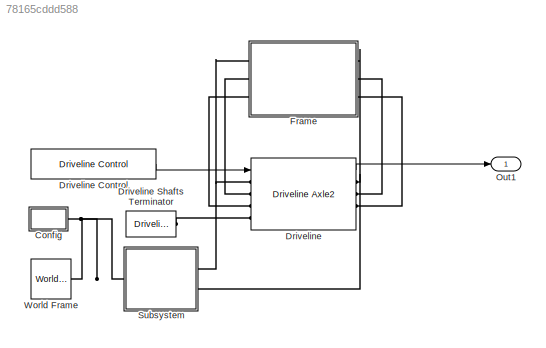
MODEL slx_78165cddd588
KIND model
CONFIG AbsTol = auto
CONFIG EnableMultiTasking = off
CONFIG FixedStep = auto
CONFIG MaxStep = auto
CONFIG MinStep = auto
CONFIG RelTol = 1e-3
CONFIG SampleTimeConstraint = Unconstrained
CONFIG SolverName = VariableStepAuto
CONFIG StartTime = 0.0
CONFIG StopTime = 10.0
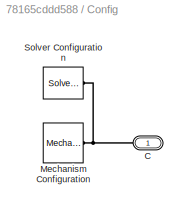
BLOCK [SubSystem] Config
  Ports = [0, 0, 0, 0, 0, 0, 1]
  RequestExecContextInheritance = off
BLOCK [PMIOPort] Config/C
  Side = Right
BLOCK [Reference] Config/Mechanism Configuration  REF=sm_lib/Utilities/Mechanism
Configuration
  Ports = [0, 0, 0, 0, 0, 0, 1]
  SourceBlock = sm_lib/Utilities/Mechanism\nConfiguration
  SourceProductBaseCode = MS
  SourceType = Mechanism\nConfiguration
BLOCK [Reference] Config/Solver Configuration  REF=nesl_utility/Solver
Configuration
  Ports = [0, 0, 0, 0, 0, 0, 1]
  SourceBlock = nesl_utility/Solver\nConfiguration
  SourceProductBaseCode = SS,PW,VE
  SourceType = Solver\nConfiguration
BLOCK [Reference] Driveline  REF=Driveline_Axle2/Driveline Axle2
  AttributesFormatString = %<ActiveVariant>
  Ports = [1, 1, 0, 0, 0, 4, 4]
  SourceBlock = Driveline_Axle2/Driveline Axle2
  SourceType = Variants for Driveline
BLOCK [Reference] Driveline Control  REF=sm_car_lib/Control/Driveline Control  (lib defined in slx_05426f0848b6, slx_5dc2867fb1c9)
  Ports = [0, 1]
  SourceBlock = sm_car_lib/Control/Driveline Control
  SourceType = SubSystem
BLOCK [Reference] Driveline Shafts Terminator  REF=sm_car_lib/Driveline/Driveline Shafts  (lib defined in slx_05426f0848b6, slx_5dc2867fb1c9)
Terminator
  Ports = [0, 0, 0, 0, 0, 0, 1]
  SourceBlock = sm_car_lib/Driveline/Driveline Shafts\nTerminator
  SourceType = SubSystem
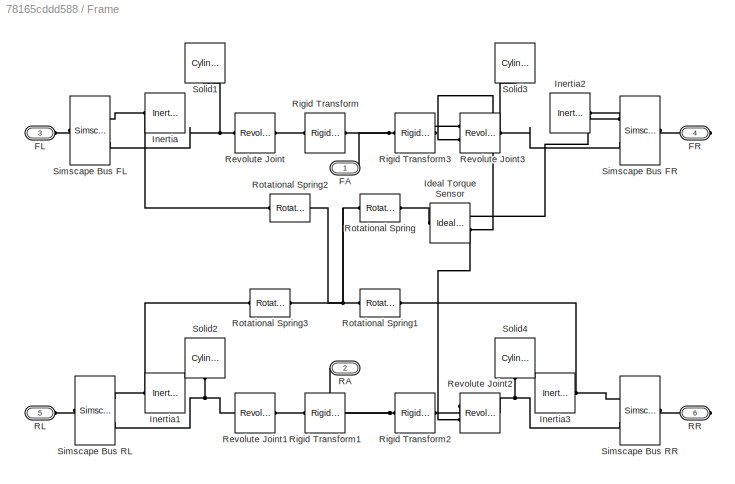
BLOCK [SubSystem] Frame
  Ports = [0, 0, 0, 0, 0, 3, 3]
  RequestExecContextInheritance = off
BLOCK [PMIOPort] Frame/FA
  Side = Left
BLOCK [PMIOPort] Frame/FL
  Port = 3
  Side = Left
BLOCK [PMIOPort] Frame/FR
  Port = 4
  Side = Right
BLOCK [Reference] Frame/Ideal Torque Sensor  REF=fl_lib/Mechanical/Mechanical Sensors/Ideal Torque Sensor
  Ports = [0, 0, 0, 0, 0, 1, 2]
  SourceBlock = fl_lib/Mechanical/Mechanical Sensors/Ideal Torque Sensor
  SourceProductBaseCode = PW,SS,VE
  SourceType = Ideal Torque Sensor
BLOCK [Reference] Frame/Inertia  REF=fl_lib/Mechanical/Rotational Elements/Inertia
  Ports = [0, 0, 0, 0, 0, 1]
  SourceBlock = fl_lib/Mechanical/Rotational Elements/Inertia
  SourceProductBaseCode = PW,SS,VE
  SourceType = Inertia
BLOCK [Reference] Frame/Inertia1  REF=fl_lib/Mechanical/Rotational Elements/Inertia
  Ports = [0, 0, 0, 0, 0, 1]
  SourceBlock = fl_lib/Mechanical/Rotational Elements/Inertia
  SourceProductBaseCode = PW,SS,VE
  SourceType = Inertia
BLOCK [Reference] Frame/Inertia2  REF=fl_lib/Mechanical/Rotational Elements/Inertia
  Ports = [0, 0, 0, 0, 0, 1]
  SourceBlock = fl_lib/Mechanical/Rotational Elements/Inertia
  SourceProductBaseCode = PW,SS,VE
  SourceType = Inertia
BLOCK [Reference] Frame/Inertia3  REF=fl_lib/Mechanical/Rotational Elements/Inertia
  Ports = [0, 0, 0, 0, 0, 1]
  SourceBlock = fl_lib/Mechanical/Rotational Elements/Inertia
  SourceProductBaseCode = PW,SS,VE
  SourceType = Inertia
BLOCK [PMIOPort] Frame/RA
  Port = 2
  Side = Right
BLOCK [PMIOPort] Frame/RL
  Port = 5
  Side = Left
BLOCK [PMIOPort] Frame/RR
  Port = 6
  Side = Right
BLOCK [Reference] Frame/Revolute Joint  REF=sm_lib/Joints/Revolute Joint
  Ports = [0, 0, 0, 0, 0, 1, 1]
  SourceBlock = sm_lib/Joints/Revolute Joint
  SourceProductBaseCode = MS
  SourceType = Revolute Joint
BLOCK [Reference] Frame/Revolute Joint1  REF=sm_lib/Joints/Revolute Joint
  Ports = [0, 0, 0, 0, 0, 1, 1]
  SourceBlock = sm_lib/Joints/Revolute Joint
  SourceProductBaseCode = MS
  SourceType = Revolute Joint
BLOCK [Reference] Frame/Revolute Joint2  REF=sm_lib/Joints/Revolute Joint
  Ports = [0, 0, 0, 0, 0, 2, 1]
  SourceBlock = sm_lib/Joints/Revolute Joint
  SourceProductBaseCode = MS
  SourceType = Revolute Joint
BLOCK [Reference] Frame/Revolute Joint3  REF=sm_lib/Joints/Revolute Joint
  Ports = [0, 0, 0, 0, 0, 2, 1]
  SourceBlock = sm_lib/Joints/Revolute Joint
  SourceProductBaseCode = MS
  SourceType = Revolute Joint
BLOCK [Reference] Frame/Rigid Transform  REF=sm_lib/Frames and
Transforms/Rigid
Transform
  NameLocation = top
  Ports = [0, 0, 0, 0, 0, 1, 1]
  SourceBlock = sm_lib/Frames and\nTransforms/Rigid\nTransform
  SourceProductBaseCode = MS
  SourceType = Rigid\nTransform
BLOCK [Reference] Frame/Rigid Transform1  REF=sm_lib/Frames and
Transforms/Rigid
Transform
  Ports = [0, 0, 0, 0, 0, 1, 1]
  SourceBlock = sm_lib/Frames and\nTransforms/Rigid\nTransform
  SourceProductBaseCode = MS
  SourceType = Rigid\nTransform
BLOCK [Reference] Frame/Rigid Transform2  REF=sm_lib/Frames and
Transforms/Rigid
Transform
  Ports = [0, 0, 0, 0, 0, 1, 1]
  SourceBlock = sm_lib/Frames and\nTransforms/Rigid\nTransform
  SourceProductBaseCode = MS
  SourceType = Rigid\nTransform
BLOCK [Reference] Frame/Rigid Transform3  REF=sm_lib/Frames and
Transforms/Rigid
Transform
  Ports = [0, 0, 0, 0, 0, 1, 1]
  SourceBlock = sm_lib/Frames and\nTransforms/Rigid\nTransform
  SourceProductBaseCode = MS
  SourceType = Rigid\nTransform
BLOCK [Reference] Frame/Rotational Spring  REF=fl_lib/Mechanical/Rotational Elements/Rotational Spring
  Ports = [0, 0, 0, 0, 0, 1, 1]
  SourceBlock = fl_lib/Mechanical/Rotational Elements/Rotational Spring
  SourceProductBaseCode = PW,SS,VE
  SourceType = Rotational Spring
BLOCK [Reference] Frame/Rotational Spring1  REF=fl_lib/Mechanical/Rotational Elements/Rotational Spring
  Ports = [0, 0, 0, 0, 0, 1, 1]
  SourceBlock = fl_lib/Mechanical/Rotational Elements/Rotational Spring
  SourceProductBaseCode = PW,SS,VE
  SourceType = Rotational Spring
BLOCK [Reference] Frame/Rotational Spring2  REF=fl_lib/Mechanical/Rotational Elements/Rotational Spring
  Ports = [0, 0, 0, 0, 0, 1, 1]
  SourceBlock = fl_lib/Mechanical/Rotational Elements/Rotational Spring
  SourceProductBaseCode = PW,SS,VE
  SourceType = Rotational Spring
BLOCK [Reference] Frame/Rotational Spring3  REF=fl_lib/Mechanical/Rotational Elements/Rotational Spring
  Ports = [0, 0, 0, 0, 0, 1, 1]
  SourceBlock = fl_lib/Mechanical/Rotational Elements/Rotational Spring
  SourceProductBaseCode = PW,SS,VE
  SourceType = Rotational Spring
BLOCK [SimscapeBus] Frame/Simscape Bus FL
  HierarchyStrings = Axle1D;AxleIn
  Ports = [0, 0, 0, 0, 0, 2, 1]
BLOCK [SimscapeBus] Frame/Simscape Bus FR
  HierarchyStrings = Axle1D;AxleIn
  Ports = [0, 0, 0, 0, 0, 2, 1]
BLOCK [SimscapeBus] Frame/Simscape Bus RL
  HierarchyStrings = Axle1D;AxleIn
  Ports = [0, 0, 0, 0, 0, 2, 1]
BLOCK [SimscapeBus] Frame/Simscape Bus RR
  HierarchyStrings = Axle1D;AxleIn
  Ports = [0, 0, 0, 0, 0, 2, 1]
BLOCK [Reference] Frame/Solid1  REF=sm_lib/Body Elements/Cylindrical Solid
  NameLocation = left
  Ports = [0, 0, 0, 0, 0, 0, 1]
  SourceBlock = sm_lib/Body Elements/Cylindrical Solid
  SourceProductBaseCode = MS
  SourceType = Cylindrical Solid
BLOCK [Reference] Frame/Solid2  REF=sm_lib/Body Elements/Cylindrical Solid
  NameLocation = left
  Ports = [0, 0, 0, 0, 0, 0, 1]
  SourceBlock = sm_lib/Body Elements/Cylindrical Solid
  SourceProductBaseCode = MS
  SourceType = Cylindrical Solid
BLOCK [Reference] Frame/Solid3  REF=sm_lib/Body Elements/Cylindrical Solid
  NameLocation = right
  Ports = [0, 0, 0, 0, 0, 0, 1]
  SourceBlock = sm_lib/Body Elements/Cylindrical Solid
  SourceProductBaseCode = MS
  SourceType = Cylindrical Solid
BLOCK [Reference] Frame/Solid4  REF=sm_lib/Body Elements/Cylindrical Solid
  NameLocation = right
  Ports = [0, 0, 0, 0, 0, 0, 1]
  SourceBlock = sm_lib/Body Elements/Cylindrical Solid
  SourceProductBaseCode = MS
  SourceType = Cylindrical Solid
BLOCK [Outport] Out1
  AttributesFormatString = %<OutDataTypeStr>
  OutDataTypeStr = Bus: VehicleDrivelineBusDef
  VectorParamsAs1DForOutWhenUnconnected = off
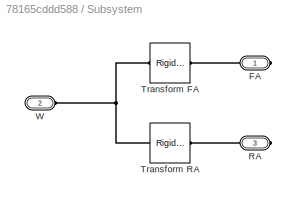
BLOCK [SubSystem] Subsystem
  Ports = [0, 0, 0, 0, 0, 1, 2]
  RequestExecContextInheritance = off
BLOCK [PMIOPort] Subsystem/FA
  Side = Right
BLOCK [PMIOPort] Subsystem/RA
  Port = 3
  Side = Right
BLOCK [Reference] Subsystem/Transform FA   REF=sm_lib/Frames and
Transforms/Rigid
Transform
  Ports = [0, 0, 0, 0, 0, 1, 1]
  SourceBlock = sm_lib/Frames and\nTransforms/Rigid\nTransform
  SourceProductBaseCode = MS
  SourceType = Rigid\nTransform
BLOCK [Reference] Subsystem/Transform RA  REF=sm_lib/Frames and
Transforms/Rigid
Transform
  Ports = [0, 0, 0, 0, 0, 1, 1]
  SourceBlock = sm_lib/Frames and\nTransforms/Rigid\nTransform
  SourceProductBaseCode = MS
  SourceType = Rigid\nTransform
BLOCK [PMIOPort] Subsystem/W
  Port = 2
  Side = Left
BLOCK [Reference] World Frame  REF=sm_lib/Frames and
Transforms/World Frame
  Ports = [0, 0, 0, 0, 0, 0, 1]
  SourceBlock = sm_lib/Frames and\nTransforms/World Frame
  SourceProductBaseCode = MS
  SourceType = World Frame
LINE Driveline Control:1 -> Driveline:1
LINE Driveline:1 -> Out1:1
PNET net1: Config/C:RConn1 -- Config/Mechanism Configuration:RConn1 -- Config/Solver Configuration:RConn1
PNET net2: Config:RConn1 -- Subsystem:LConn1 -- World Frame:RConn1
PLINE Driveline Shafts Terminator:RConn1 -- Driveline:LConn4
PNET net3: Driveline:LConn1 -- Frame:LConn1 -- Subsystem:RConn1
PLINE Driveline:LConn2 -- Frame:LConn2
PLINE Driveline:LConn3 -- Frame:LConn3
PNET net4: Driveline:RConn1 -- Frame:RConn1 -- Subsystem:RConn2
PLINE Driveline:RConn2 -- Frame:RConn2
PLINE Driveline:RConn3 -- Frame:RConn3
PNET net5: Frame/FA:RConn1 -- Frame/Rigid Transform3:LConn1 -- Frame/Rigid Transform:LConn1
PLINE Frame/FL:RConn1 -- Frame/Simscape Bus FL:RConn1
PLINE Frame/FR:RConn1 -- Frame/Simscape Bus FR:RConn1
PLINE Frame/Ideal Torque Sensor:LConn1 -- Frame/Rotational Spring:RConn1
PNET net6: Frame/Ideal Torque Sensor:RConn1 -- Frame/Inertia2:LConn1 -- Frame/Simscape Bus FR:LConn1
PNET net7: Frame/Ideal Torque Sensor:RConn2 -- Frame/Revolute Joint2:LConn2 -- Frame/Revolute Joint3:LConn2
PNET net8: Frame/Inertia1:LConn1 -- Frame/Rotational Spring3:RConn1 -- Frame/Simscape Bus RL:LConn1
PNET net9: Frame/Inertia3:LConn1 -- Frame/Rotational Spring1:RConn1 -- Frame/Simscape Bus RR:LConn1
PNET net10: Frame/Inertia:LConn1 -- Frame/Rotational Spring2:RConn1 -- Frame/Simscape Bus FL:LConn1
PNET net11: Frame/RA:RConn1 -- Frame/Rigid Transform1:LConn1 -- Frame/Rigid Transform2:LConn1
PLINE Frame/RL:RConn1 -- Frame/Simscape Bus RL:RConn1
PLINE Frame/RR:RConn1 -- Frame/Simscape Bus RR:RConn1
PLINE Frame/Revolute Joint1:LConn1 -- Frame/Rigid Transform1:RConn1
PNET net12: Frame/Revolute Joint1:RConn1 -- Frame/Simscape Bus RL:LConn2 -- Frame/Solid2:RConn1
PLINE Frame/Revolute Joint2:LConn1 -- Frame/Rigid Transform2:RConn1
PNET net13: Frame/Revolute Joint2:RConn1 -- Frame/Simscape Bus RR:LConn2 -- Frame/Solid4:RConn1
PLINE Frame/Revolute Joint3:LConn1 -- Frame/Rigid Transform3:RConn1
PNET net14: Frame/Revolute Joint3:RConn1 -- Frame/Simscape Bus FR:LConn2 -- Frame/Solid3:RConn1
PLINE Frame/Revolute Joint:LConn1 -- Frame/Rigid Transform:RConn1
PNET net15: Frame/Revolute Joint:RConn1 -- Frame/Simscape Bus FL:LConn2 -- Frame/Solid1:RConn1
PNET net16: Frame/Rotational Spring1:LConn1 -- Frame/Rotational Spring2:LConn1 -- Frame/Rotational Spring3:LConn1 -- Frame/Rotational Spring:LConn1
PLINE Subsystem/FA:RConn1 -- Subsystem/Transform FA :RConn1
PLINE Subsystem/RA:RConn1 -- Subsystem/Transform RA:RConn1
PNET net17: Subsystem/Transform FA :LConn1 -- Subsystem/Transform RA:LConn1 -- Subsystem/W:RConn1
note: PNET lines group multi-terminal physical nets as a canonical sorted terminal list (undirected conserving connections); 2-terminal nets keep the pairwise PLINE form
